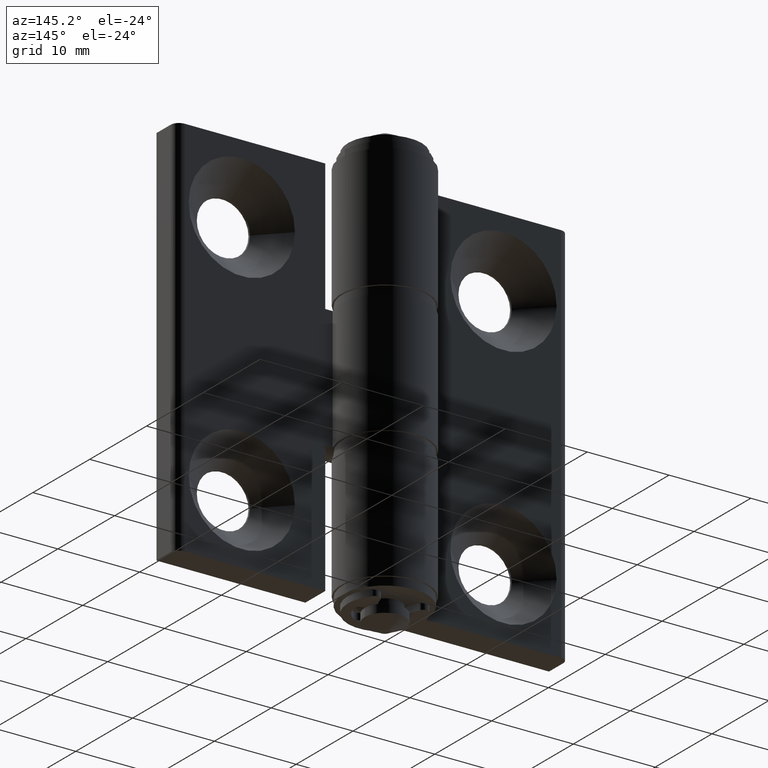
[diagram: clean part render]
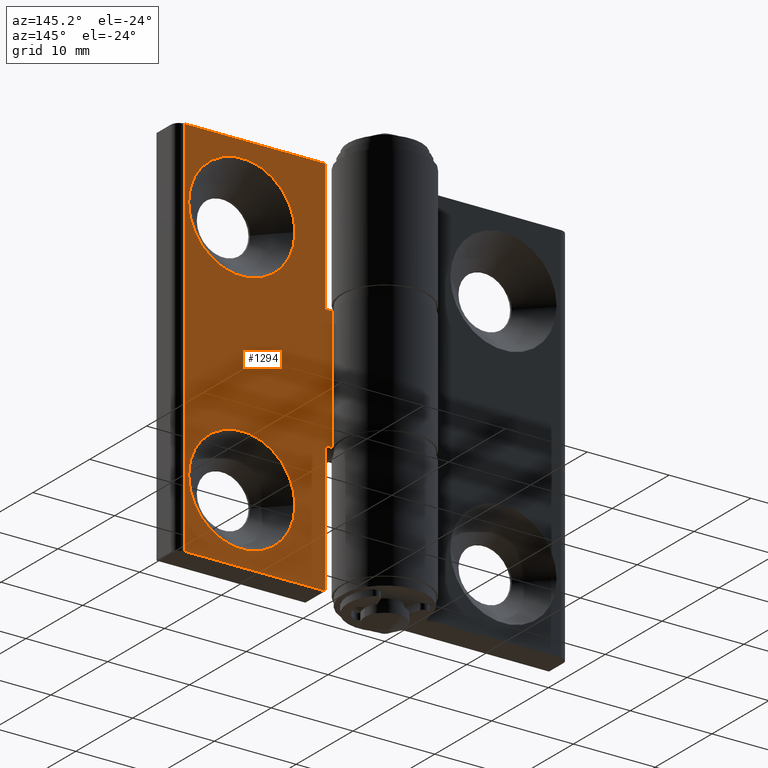
[diagram: same view with one face highlighted and labeled with its STEP entity id]
A machine part, auxiliary view. The second image highlights one B-rep face of the part: STEP entity #1294.
In plain terms, the highlighted planar face has unit normal (0, 1, 0).
Its self-contained STEP definition (entity closure, byte-faithful):
#130=FACE_BOUND('',#273,.T.);
#131=FACE_BOUND('',#274,.T.);
#176=FACE_OUTER_BOUND('',#272,.T.);
#272=EDGE_LOOP('',(#1001,#1002,#1003,#1004,#1005,#1006,#1007,#1008));
#273=EDGE_LOOP('',(#1009));
#274=EDGE_LOOP('',(#1010));
#375=CIRCLE('',#1404,6.5);
#376=CIRCLE('',#1405,6.5);
#455=LINE('',#2059,#547);
#458=LINE('',#2070,#550);
#464=LINE('',#2088,#556);
#465=LINE('',#2090,#557);
#466=LINE('',#2092,#558);
#467=LINE('',#2094,#559);
#468=LINE('',#2095,#560);
#469=LINE('',#2096,#561);
#547=VECTOR('',#1631,0.901020514433649);
#550=VECTOR('',#1640,0.90102051443365);
#556=VECTOR('',#1654,17.2);
#557=VECTOR('',#1657,16.);
#558=VECTOR('',#1658,47.);
#559=VECTOR('',#1659,17.2);
#560=VECTOR('',#1660,16.);
#561=VECTOR('',#1661,15.);
#644=VERTEX_POINT('',#2057);
#645=VERTEX_POINT('',#2058);
#649=VERTEX_POINT('',#2068);
#650=VERTEX_POINT('',#2069);
#654=VERTEX_POINT('',#2079);
#658=VERTEX_POINT('',#2086);
#659=VERTEX_POINT('',#2091);
#660=VERTEX_POINT('',#2093);
#661=VERTEX_POINT('',#2097);
#662=VERTEX_POINT('',#2099);
#777=EDGE_CURVE('',#644,#645,#455,.T.);
#782=EDGE_CURVE('',#649,#650,#458,.T.);
#791=EDGE_CURVE('',#658,#654,#464,.T.);
#792=EDGE_CURVE('',#645,#654,#465,.T.);
#793=EDGE_CURVE('',#659,#658,#466,.T.);
#794=EDGE_CURVE('',#660,#659,#467,.T.);
#795=EDGE_CURVE('',#660,#649,#468,.T.);
#796=EDGE_CURVE('',#644,#650,#469,.T.);
#797=EDGE_CURVE('',#661,#661,#375,.T.);
#798=EDGE_CURVE('',#662,#662,#376,.T.);
#1001=ORIENTED_EDGE('',*,*,#777,.T.);
#1002=ORIENTED_EDGE('',*,*,#792,.T.);
#1003=ORIENTED_EDGE('',*,*,#791,.F.);
#1004=ORIENTED_EDGE('',*,*,#793,.F.);
#1005=ORIENTED_EDGE('',*,*,#794,.F.);
#1006=ORIENTED_EDGE('',*,*,#795,.T.);
#1007=ORIENTED_EDGE('',*,*,#782,.T.);
#1008=ORIENTED_EDGE('',*,*,#796,.F.);
#1009=ORIENTED_EDGE('',*,*,#797,.T.);
#1010=ORIENTED_EDGE('',*,*,#798,.T.);
#1245=PLANE('',#1403);
#1294=ADVANCED_FACE('',(#176,#130,#131),#1245,.T.);
#1403=AXIS2_PLACEMENT_3D('',#2089,#1655,#1656);
#1404=AXIS2_PLACEMENT_3D('',#2098,#1662,#1663);
#1405=AXIS2_PLACEMENT_3D('',#2100,#1664,#1665);
#1631=DIRECTION('',(1.,0.,0.));
#1640=DIRECTION('',(-1.,0.,0.));
#1654=DIRECTION('',(-1.,0.,0.));
#1655=DIRECTION('center_axis',(0.,1.,0.));
#1656=DIRECTION('ref_axis',(-1.,0.,0.));
#1657=DIRECTION('',(0.,0.,1.));
#1658=DIRECTION('',(0.,0.,1.));
#1659=DIRECTION('',(1.,0.,0.));
#1660=DIRECTION('',(0.,0.,1.));
#1661=DIRECTION('',(0.,0.,-1.));
#1662=DIRECTION('center_axis',(0.,-1.,0.));
#1663=DIRECTION('ref_axis',(1.,0.,0.));
#1664=DIRECTION('center_axis',(0.,-1.,0.));
#1665=DIRECTION('ref_axis',(1.,0.,0.));
#2057=CARTESIAN_POINT('',(4.89897948556636,-2.15,7.5));
#2058=CARTESIAN_POINT('',(5.80000000000001,-2.15,7.5));
#2059=CARTESIAN_POINT('',(6.37460238429085,-2.15,7.5));
#2068=CARTESIAN_POINT('',(5.80000000000001,-2.15,-7.5));
#2069=CARTESIAN_POINT('',(4.89897948556636,-2.15,-7.5));
#2070=CARTESIAN_POINT('',(14.9,-2.15,-7.5));
#2079=CARTESIAN_POINT('',(5.8,-2.15,23.5));
#2086=CARTESIAN_POINT('',(23.,-2.15,23.5));
#2088=CARTESIAN_POINT('',(24.,-2.15,23.5));
#2089=CARTESIAN_POINT('Origin',(24.,-2.15,0.));
#2090=CARTESIAN_POINT('',(5.8,-2.15,3.75));
#2091=CARTESIAN_POINT('',(23.,-2.15,-23.5));
#2092=CARTESIAN_POINT('',(23.,-2.15,0.));
#2093=CARTESIAN_POINT('',(5.8,-2.15,-23.5));
#2094=CARTESIAN_POINT('',(24.,-2.15,-23.5));
#2095=CARTESIAN_POINT('',(5.8,-2.15,-11.75));
#2096=CARTESIAN_POINT('',(4.89897948556636,-2.15,0.));
#2097=CARTESIAN_POINT('',(9.5,-2.15,15.));
#2098=CARTESIAN_POINT('Origin',(16.,-2.15,15.));
#2099=CARTESIAN_POINT('',(9.5,-2.15,-15.));
#2100=CARTESIAN_POINT('Origin',(16.,-2.15,-15.));